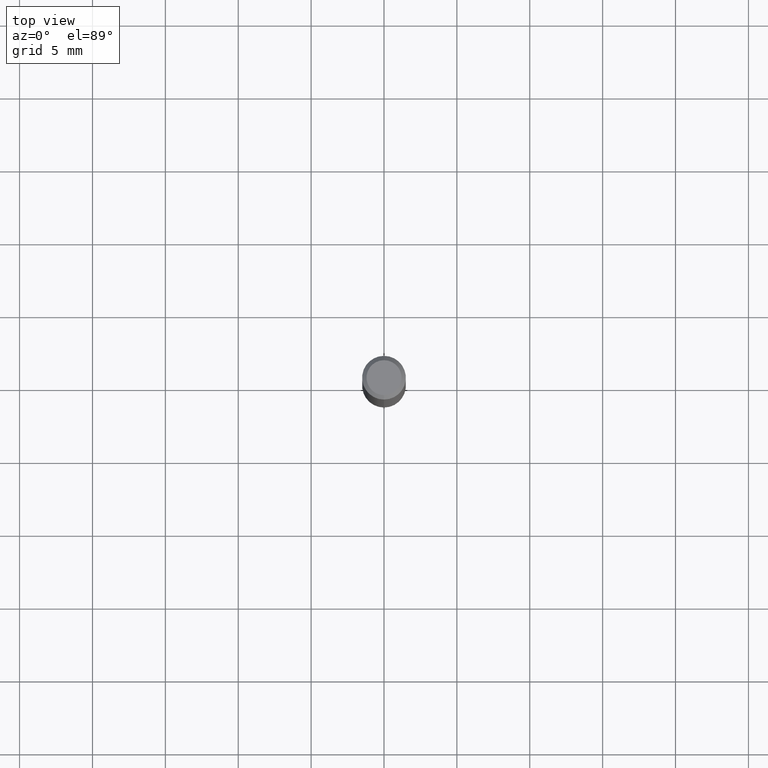
[diagram: clean part render]
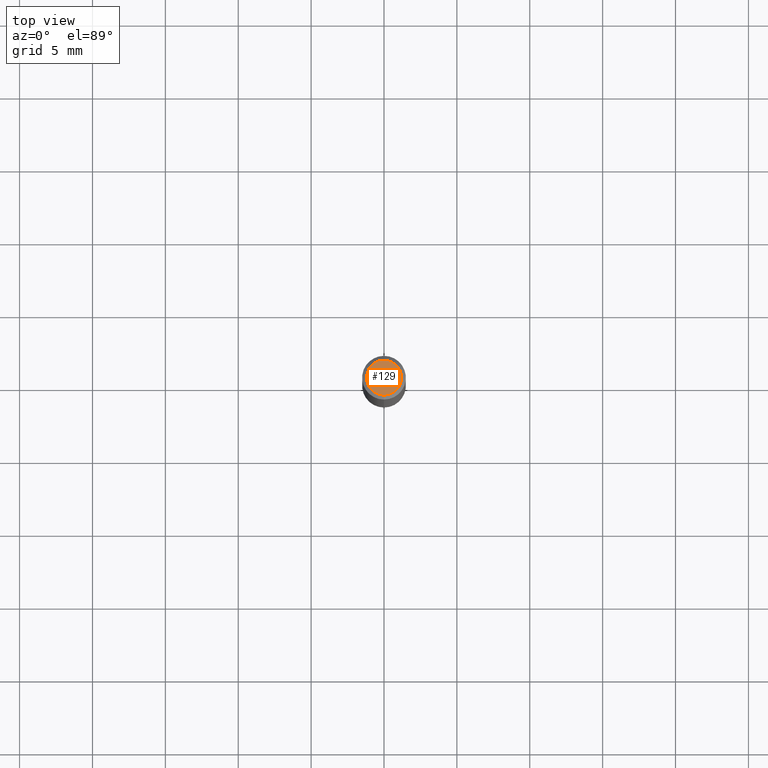
[diagram: same view with one face highlighted and labeled with its STEP entity id]
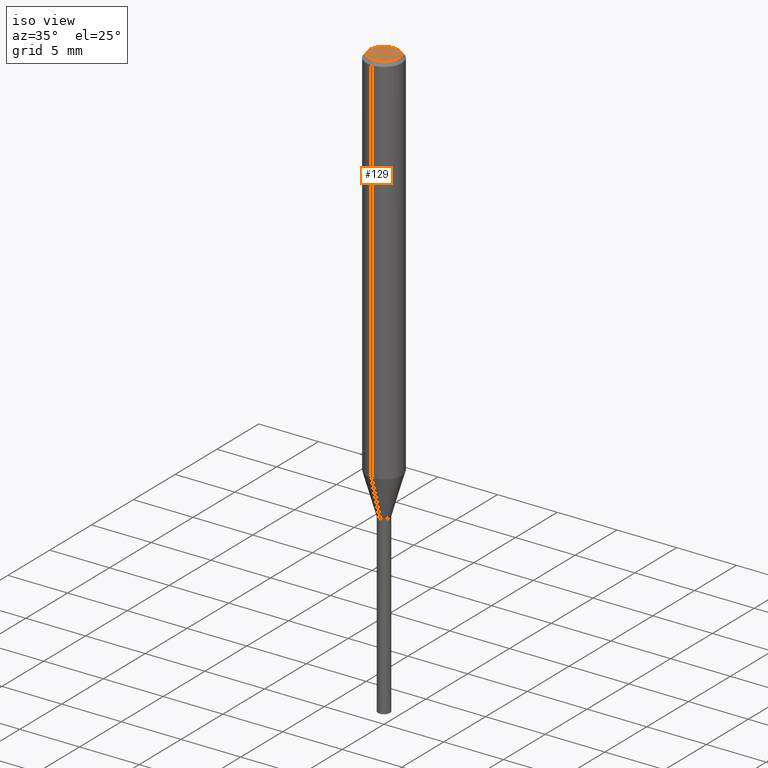
[diagram: same view with one face highlighted and labeled with its STEP entity id]
A machine part, top view. The second image highlights one B-rep face of the part: STEP entity #129.
A second angle (iso view) of the same face is appended — the face is thin or edge-on in the first view.
In plain terms, the highlighted planar face has unit normal (-0, 0, 1).
Its self-contained STEP definition (entity closure, byte-faithful):
#111=VERTEX_POINT('',#248);
#125=VERTEX_POINT('',#266);
#129=ADVANCED_FACE('',(#270),#271,.T.);
#137=EDGE_CURVE('',#111,#125,#279,.T.);
#175=EDGE_CURVE('',#125,#111,#321,.T.);
#248=CARTESIAN_POINT('',(1.46952762458685E-016,-1.2,0.0));
#266=CARTESIAN_POINT('',(0.0,1.2,0.0));
#270=FACE_OUTER_BOUND('',#421,.T.);
#271=PLANE('',#422);
#279=CIRCLE('',#434,1.2);
#321=CIRCLE('',#489,1.2);
#421=EDGE_LOOP('',(#594,#595));
#422=AXIS2_PLACEMENT_3D('',#596,#597,#598);
#434=AXIS2_PLACEMENT_3D('',#608,#609,#610);
#489=AXIS2_PLACEMENT_3D('',#655,#656,#657);
#594=ORIENTED_EDGE('',*,*,#175,.F.);
#595=ORIENTED_EDGE('',*,*,#137,.F.);
#596=CARTESIAN_POINT('',(0.0,0.6,0.0));
#597=DIRECTION('',(-0.0,0.0,1.0));
#598=DIRECTION('',(0.0,-1.0,0.0));
#608=CARTESIAN_POINT('',(0.0,0.0,0.0));
#609=DIRECTION('',(0.0,0.0,-1.0));
#610=DIRECTION('',(0.0,1.0,0.0));
#655=CARTESIAN_POINT('',(0.0,0.0,0.0));
#656=DIRECTION('',(0.0,0.0,-1.0));
#657=DIRECTION('',(0.0,1.0,0.0));